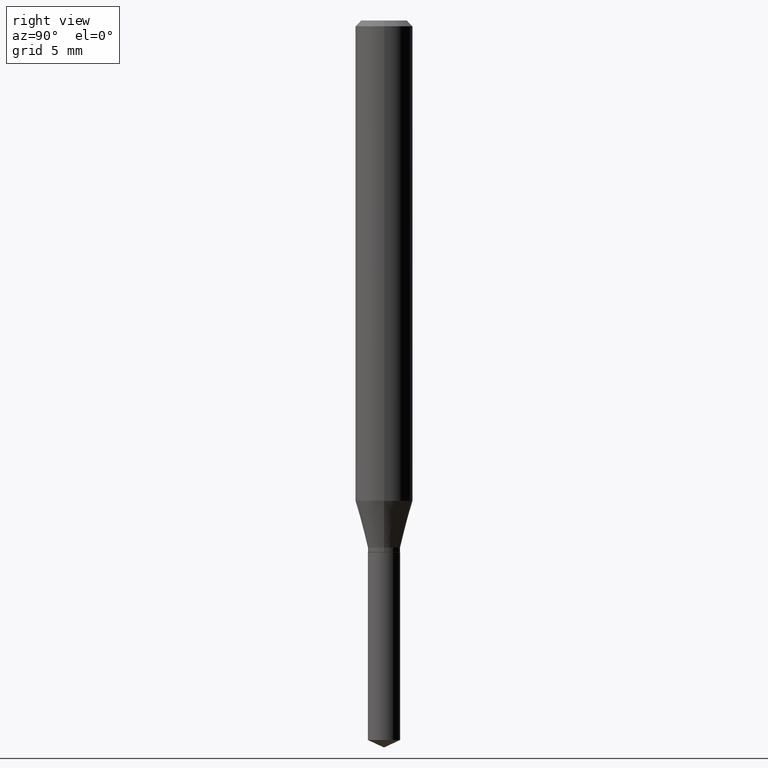
[diagram: clean part render]
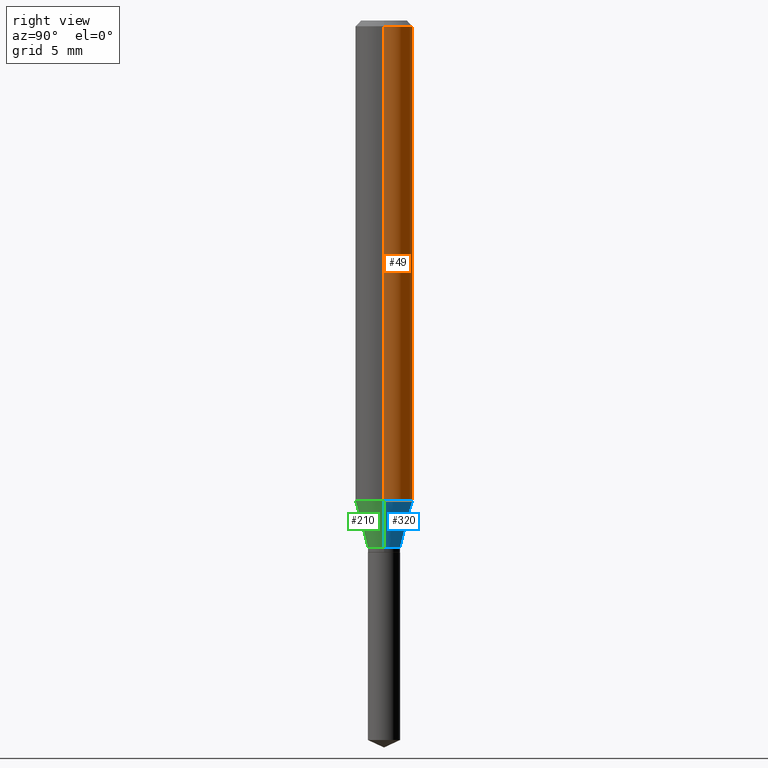
[diagram: same view with three faces highlighted in distinct colors, each labeled with its STEP entity id]
A machine part, right view with three faces highlighted in distinct colors.
Their STEP definitions:

[orange] entity #49 — the highlighted cylindrical surface (edge-blend (fillet) strip) has radius 1.4999 mm, axis along (-0, 0, 1).
#13 = DIRECTION ( 'NONE',  ( 1.000000000000000000, -6.982962677686266711E-15, 0.000000000000000000 ) ) ;
#23 = DIRECTION ( 'NONE',  ( 1.000000000000000000, -6.982962677686266711E-15, 4.876176775795935793E-29 ) ) ;
#38 = DIRECTION ( 'NONE',  ( 1.000000000000000000, -6.982962677686266711E-15, 0.000000000000000000 ) ) ;
#49 = ADVANCED_FACE ( 'NONE', ( #206 ), #207, .T. ) ;
#51 = AXIS2_PLACEMENT_3D ( 'NONE', #367, #244, #23 ) ;
#60 = LINE ( 'NONE', #184, #361 ) ;
#64 = CARTESIAN_POINT ( 'NONE',  ( -0.05904999999999999832, -1.326205491649111683E-15, -0.01181000000000007218 ) ) ;
#72 = VERTEX_POINT ( 'NONE', #246 ) ;
#84 = CARTESIAN_POINT ( 'NONE',  ( 2.888098660104664204E-31, -4.123439461173780263E-17, -0.01181000000000007218 ) ) ;
#92 = CARTESIAN_POINT ( 'NONE',  ( 2.416644283416180076E-29, -3.450327559619166201E-15, -0.9882130891647225024 ) ) ;
#106 = VERTEX_POINT ( 'NONE', #64 ) ;
#117 = VERTEX_POINT ( 'NONE', #324 ) ;
#131 = EDGE_CURVE ( 'NONE', #273, #106, #177, .T. ) ;
#139 = CIRCLE ( 'NONE', #403, 0.05905000000000011628 ) ;
#177 = LINE ( 'NONE', #445, #408 ) ;
#184 = CARTESIAN_POINT ( 'NONE',  ( 0.05905000000000006077, -4.123439461173744764E-16, 2.879382386107503023E-30 ) ) ;
#203 = CIRCLE ( 'NONE', #447, 0.05904999999999999832 ) ;
#204 = EDGE_CURVE ( 'NONE', #117, #273, #139, .T. ) ;
#206 = FACE_OUTER_BOUND ( 'NONE', #458, .T. ) ;
#207 = CYLINDRICAL_SURFACE ( 'NONE', #51, 0.05905000000000006077 ) ;
#213 = DIRECTION ( 'NONE',  ( -2.445468806185136877E-29, 3.491481338843145188E-15, 1.000000000000000000 ) ) ;
#214 = DIRECTION ( 'NONE',  ( -2.445468806185136597E-29, 3.491481338843145583E-15, 1.000000000000000000 ) ) ;
#219 = ORIENTED_EDGE ( 'NONE', *, *, #386, .F. ) ;
#236 = ORIENTED_EDGE ( 'NONE', *, *, #131, .T. ) ;
#244 = DIRECTION ( 'NONE',  ( -2.445468806185136597E-29, 3.491481338843145583E-15, 1.000000000000000000 ) ) ;
#246 = CARTESIAN_POINT ( 'NONE',  ( 0.05904999999999999832, -4.535783407291118600E-16, -0.01181000000000007218 ) ) ;
#273 = VERTEX_POINT ( 'NONE', #461 ) ;
#324 = CARTESIAN_POINT ( 'NONE',  ( 0.05905000000000011628, -3.862671505736541121E-15, -0.9882130891647225024 ) ) ;
#331 = DIRECTION ( 'NONE',  ( -2.445468806185136877E-29, 3.491481338843145188E-15, 1.000000000000000000 ) ) ;
#338 = ORIENTED_EDGE ( 'NONE', *, *, #446, .F. ) ;
#348 = DIRECTION ( 'NONE',  ( -2.445468806185136597E-29, 3.491481338843145583E-15, 1.000000000000000000 ) ) ;
#361 = VECTOR ( 'NONE', #331, 39.37007874015748143 ) ;
#367 = CARTESIAN_POINT ( 'NONE',  ( 0.000000000000000000, 0.000000000000000000, 0.000000000000000000 ) ) ;
#386 = EDGE_CURVE ( 'NONE', #72, #106, #203, .T. ) ;
#403 = AXIS2_PLACEMENT_3D ( 'NONE', #92, #214, #38 ) ;
#408 = VECTOR ( 'NONE', #213, 39.37007874015748143 ) ;
#417 = ORIENTED_EDGE ( 'NONE', *, *, #204, .T. ) ;
#445 = CARTESIAN_POINT ( 'NONE',  ( -0.05905000000000006077, 4.195754854663395916E-16, -2.904631170795524694E-30 ) ) ;
#446 = EDGE_CURVE ( 'NONE', #117, #72, #60, .T. ) ;
#447 = AXIS2_PLACEMENT_3D ( 'NONE', #84, #348, #13 ) ;
#458 = EDGE_LOOP ( 'NONE', ( #417, #236, #219, #338 ) ) ;
#461 = CARTESIAN_POINT ( 'NONE',  ( -0.05905000000000011628, -3.030752074152826708E-15, -0.9882130891647225024 ) ) ;

[blue] entity #320 — the highlighted conical surface has half-angle 15 deg.
#21 = CONICAL_SURFACE ( 'NONE', #168, 0.03325000000000000178, 0.2617993877991498519 ) ;
#35 = CARTESIAN_POINT ( 'NONE',  ( 2.652110920307780249E-29, -3.786511511975391124E-15, -1.084499999999999797 ) ) ;
#38 = DIRECTION ( 'NONE',  ( 1.000000000000000000, -6.982962677686266711E-15, 0.000000000000000000 ) ) ;
#45 = DIRECTION ( 'NONE',  ( 1.000000000000000000, -6.982962677686267499E-15, 0.000000000000000000 ) ) ;
#79 = VECTOR ( 'NONE', #391, 39.37007874015748854 ) ;
#85 = EDGE_CURVE ( 'NONE', #467, #117, #291, .T. ) ;
#92 = CARTESIAN_POINT ( 'NONE',  ( 2.416644283416180076E-29, -3.450327559619166201E-15, -0.9882130891647225024 ) ) ;
#105 = DIRECTION ( 'NONE',  ( -2.445468806185136597E-29, 3.491481338843145583E-15, 1.000000000000000000 ) ) ;
#112 = FACE_OUTER_BOUND ( 'NONE', #466, .T. ) ;
#117 = VERTEX_POINT ( 'NONE', #324 ) ;
#139 = CIRCLE ( 'NONE', #403, 0.05905000000000011628 ) ;
#163 = LINE ( 'NONE', #237, #79 ) ;
#168 = AXIS2_PLACEMENT_3D ( 'NONE', #35, #105, #330 ) ;
#172 = DIRECTION ( 'NONE',  ( 0.2588190451025211281, 1.565188264969622954E-15, 0.9659258262890679791 ) ) ;
#173 = VECTOR ( 'NONE', #172, 39.37007874015748854 ) ;
#183 = VERTEX_POINT ( 'NONE', #427 ) ;
#204 = EDGE_CURVE ( 'NONE', #117, #273, #139, .T. ) ;
#214 = DIRECTION ( 'NONE',  ( -2.445468806185136597E-29, 3.491481338843145583E-15, 1.000000000000000000 ) ) ;
#237 = CARTESIAN_POINT ( 'NONE',  ( -0.03325000000000000178, -3.550256052335157800E-15, -1.084499999999999797 ) ) ;
#243 = ORIENTED_EDGE ( 'NONE', *, *, #204, .F. ) ;
#253 = CARTESIAN_POINT ( 'NONE',  ( 0.03325000000000000178, -4.018695021008458987E-15, -1.084499999999999797 ) ) ;
#260 = ORIENTED_EDGE ( 'NONE', *, *, #85, .F. ) ;
#273 = VERTEX_POINT ( 'NONE', #461 ) ;
#278 = ORIENTED_EDGE ( 'NONE', *, *, #366, .T. ) ;
#283 = ORIENTED_EDGE ( 'NONE', *, *, #434, .T. ) ;
#290 = CARTESIAN_POINT ( 'NONE',  ( 0.03325000000000000178, -4.018695021008458987E-15, -1.084499999999999797 ) ) ;
#291 = LINE ( 'NONE', #253, #173 ) ;
#300 = CARTESIAN_POINT ( 'NONE',  ( 2.652110920307780249E-29, -3.786511511975391124E-15, -1.084499999999999797 ) ) ;
#320 = ADVANCED_FACE ( 'NONE', ( #112 ), #21, .T. ) ;
#324 = CARTESIAN_POINT ( 'NONE',  ( 0.05905000000000011628, -3.862671505736541121E-15, -0.9882130891647225024 ) ) ;
#330 = DIRECTION ( 'NONE',  ( 1.000000000000000000, -6.982962677686267499E-15, 0.000000000000000000 ) ) ;
#358 = DIRECTION ( 'NONE',  ( -2.445468806185136597E-29, 3.491481338843145583E-15, 1.000000000000000000 ) ) ;
#366 = EDGE_CURVE ( 'NONE', #467, #183, #490, .T. ) ;
#375 = AXIS2_PLACEMENT_3D ( 'NONE', #300, #358, #45 ) ;
#391 = DIRECTION ( 'NONE',  ( -0.2588190451025211281, 5.211531920934547886E-15, 0.9659258262890679791 ) ) ;
#403 = AXIS2_PLACEMENT_3D ( 'NONE', #92, #214, #38 ) ;
#427 = CARTESIAN_POINT ( 'NONE',  ( -0.03325000000000000178, -3.566840588694662478E-15, -1.084499999999999797 ) ) ;
#434 = EDGE_CURVE ( 'NONE', #183, #273, #163, .T. ) ;
#461 = CARTESIAN_POINT ( 'NONE',  ( -0.05905000000000011628, -3.030752074152826708E-15, -0.9882130891647225024 ) ) ;
#466 = EDGE_LOOP ( 'NONE', ( #278, #283, #243, #260 ) ) ;
#467 = VERTEX_POINT ( 'NONE', #290 ) ;
#490 = CIRCLE ( 'NONE', #375, 0.03325000000000000178 ) ;

[green] entity #210 — the highlighted conical surface has half-angle 15 deg.
#68 = DIRECTION ( 'NONE',  ( -2.445468806185136597E-29, 3.491481338843145583E-15, 1.000000000000000000 ) ) ;
#73 = DIRECTION ( 'NONE',  ( -2.445468806185136597E-29, 3.491481338843145583E-15, 1.000000000000000000 ) ) ;
#79 = VECTOR ( 'NONE', #391, 39.37007874015748854 ) ;
#85 = EDGE_CURVE ( 'NONE', #467, #117, #291, .T. ) ;
#87 = ORIENTED_EDGE ( 'NONE', *, *, #85, .T. ) ;
#108 = DIRECTION ( 'NONE',  ( -2.445468806185136597E-29, 3.491481338843145583E-15, 1.000000000000000000 ) ) ;
#117 = VERTEX_POINT ( 'NONE', #324 ) ;
#128 = EDGE_LOOP ( 'NONE', ( #282, #310, #87, #275 ) ) ;
#152 = DIRECTION ( 'NONE',  ( 1.000000000000000000, -6.982962677686267499E-15, 0.000000000000000000 ) ) ;
#154 = EDGE_CURVE ( 'NONE', #273, #117, #307, .T. ) ;
#163 = LINE ( 'NONE', #237, #79 ) ;
#169 = CIRCLE ( 'NONE', #270, 0.03325000000000000178 ) ;
#172 = DIRECTION ( 'NONE',  ( 0.2588190451025211281, 1.565188264969622954E-15, 0.9659258262890679791 ) ) ;
#173 = VECTOR ( 'NONE', #172, 39.37007874015748854 ) ;
#183 = VERTEX_POINT ( 'NONE', #427 ) ;
#210 = ADVANCED_FACE ( 'NONE', ( #293 ), #245, .T. ) ;
#225 = CARTESIAN_POINT ( 'NONE',  ( 2.652110920307780249E-29, -3.786511511975391124E-15, -1.084499999999999797 ) ) ;
#237 = CARTESIAN_POINT ( 'NONE',  ( -0.03325000000000000178, -3.550256052335157800E-15, -1.084499999999999797 ) ) ;
#245 = CONICAL_SURFACE ( 'NONE', #262, 0.03325000000000000178, 0.2617993877991498519 ) ;
#253 = CARTESIAN_POINT ( 'NONE',  ( 0.03325000000000000178, -4.018695021008458987E-15, -1.084499999999999797 ) ) ;
#262 = AXIS2_PLACEMENT_3D ( 'NONE', #225, #108, #484 ) ;
#263 = CARTESIAN_POINT ( 'NONE',  ( 2.652110920307780249E-29, -3.786511511975391124E-15, -1.084499999999999797 ) ) ;
#266 = EDGE_CURVE ( 'NONE', #183, #467, #169, .T. ) ;
#270 = AXIS2_PLACEMENT_3D ( 'NONE', #263, #73, #152 ) ;
#273 = VERTEX_POINT ( 'NONE', #461 ) ;
#275 = ORIENTED_EDGE ( 'NONE', *, *, #154, .F. ) ;
#282 = ORIENTED_EDGE ( 'NONE', *, *, #434, .F. ) ;
#290 = CARTESIAN_POINT ( 'NONE',  ( 0.03325000000000000178, -4.018695021008458987E-15, -1.084499999999999797 ) ) ;
#291 = LINE ( 'NONE', #253, #173 ) ;
#293 = FACE_OUTER_BOUND ( 'NONE', #128, .T. ) ;
#307 = CIRCLE ( 'NONE', #345, 0.05905000000000011628 ) ;
#310 = ORIENTED_EDGE ( 'NONE', *, *, #266, .T. ) ;
#324 = CARTESIAN_POINT ( 'NONE',  ( 0.05905000000000011628, -3.862671505736541121E-15, -0.9882130891647225024 ) ) ;
#345 = AXIS2_PLACEMENT_3D ( 'NONE', #473, #68, #374 ) ;
#374 = DIRECTION ( 'NONE',  ( 1.000000000000000000, -6.982962677686266711E-15, 0.000000000000000000 ) ) ;
#391 = DIRECTION ( 'NONE',  ( -0.2588190451025211281, 5.211531920934547886E-15, 0.9659258262890679791 ) ) ;
#427 = CARTESIAN_POINT ( 'NONE',  ( -0.03325000000000000178, -3.566840588694662478E-15, -1.084499999999999797 ) ) ;
#434 = EDGE_CURVE ( 'NONE', #183, #273, #163, .T. ) ;
#461 = CARTESIAN_POINT ( 'NONE',  ( -0.05905000000000011628, -3.030752074152826708E-15, -0.9882130891647225024 ) ) ;
#467 = VERTEX_POINT ( 'NONE', #290 ) ;
#473 = CARTESIAN_POINT ( 'NONE',  ( 2.416644283416180076E-29, -3.450327559619166201E-15, -0.9882130891647225024 ) ) ;
#484 = DIRECTION ( 'NONE',  ( 1.000000000000000000, -6.982962677686267499E-15, 0.000000000000000000 ) ) ;